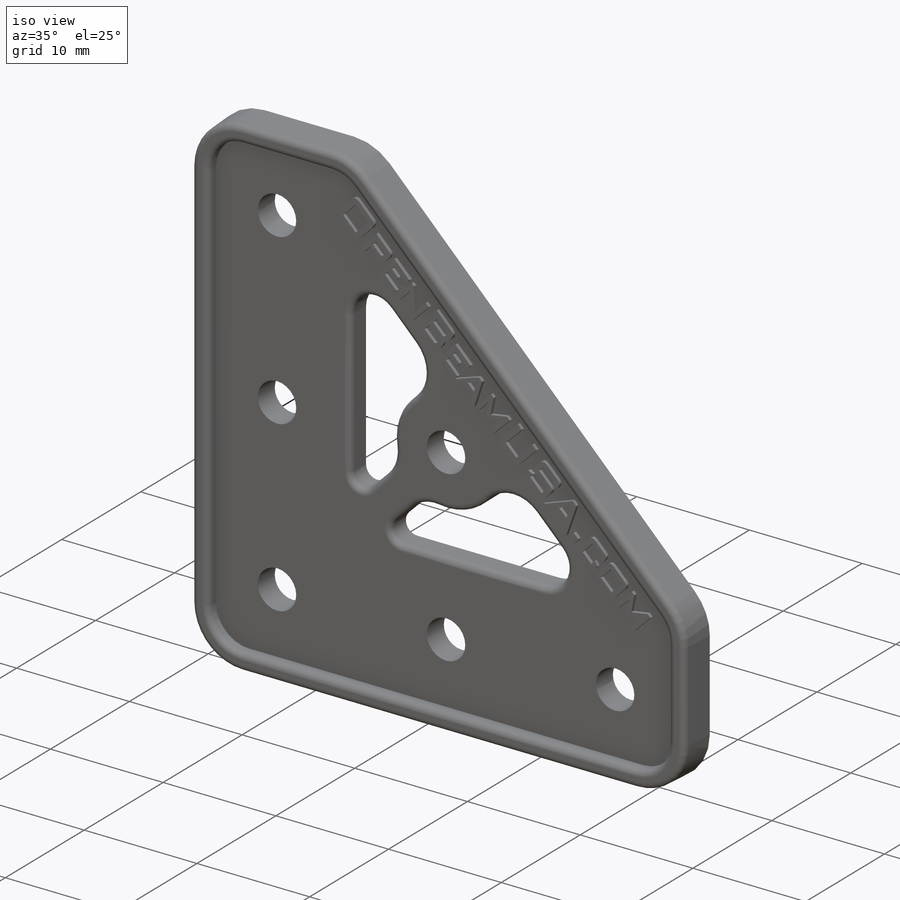
[diagram: iso view]
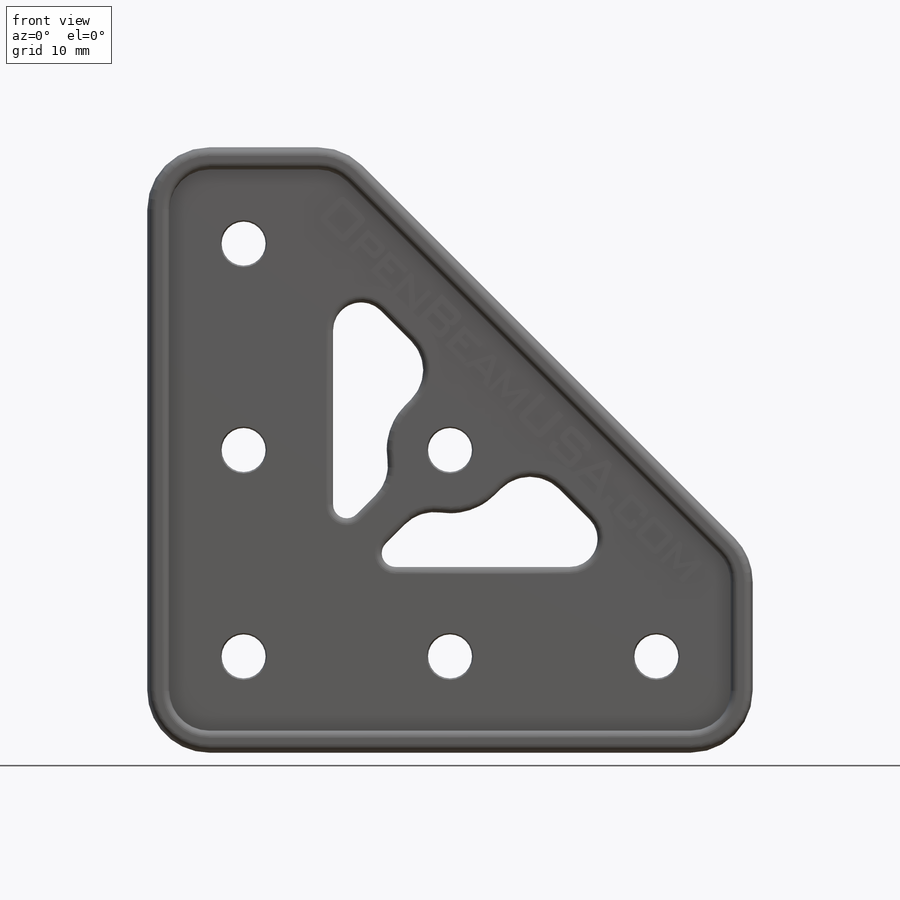
[diagram: front view]
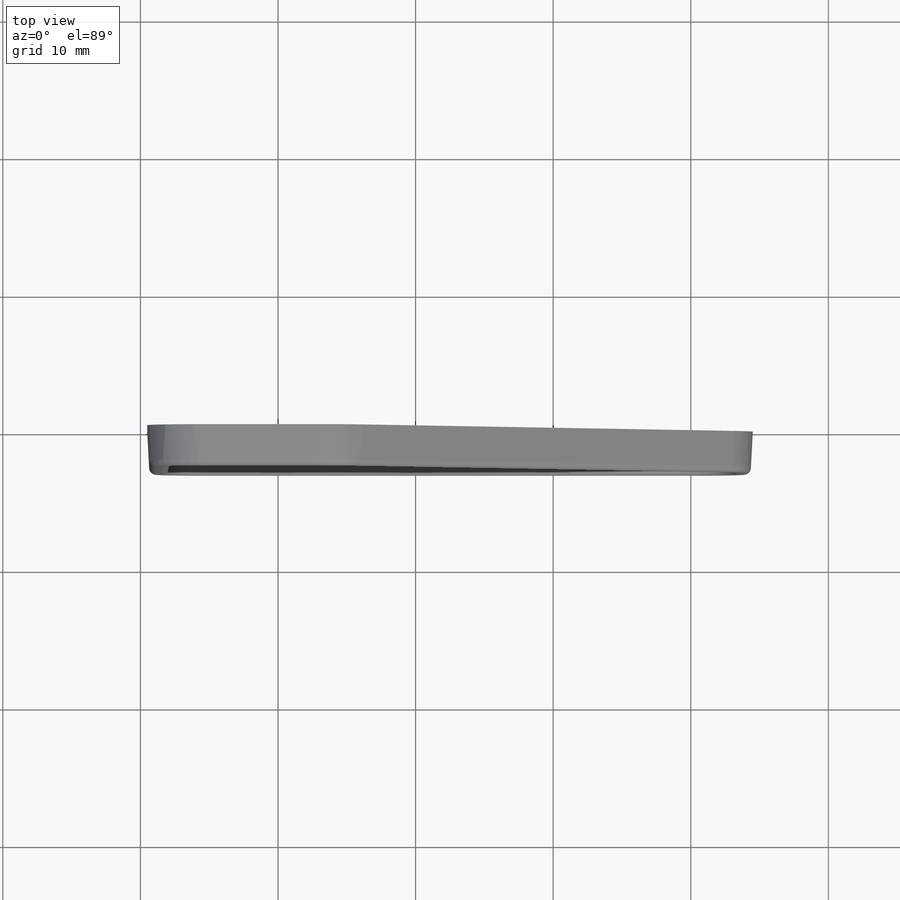
[diagram: top view]
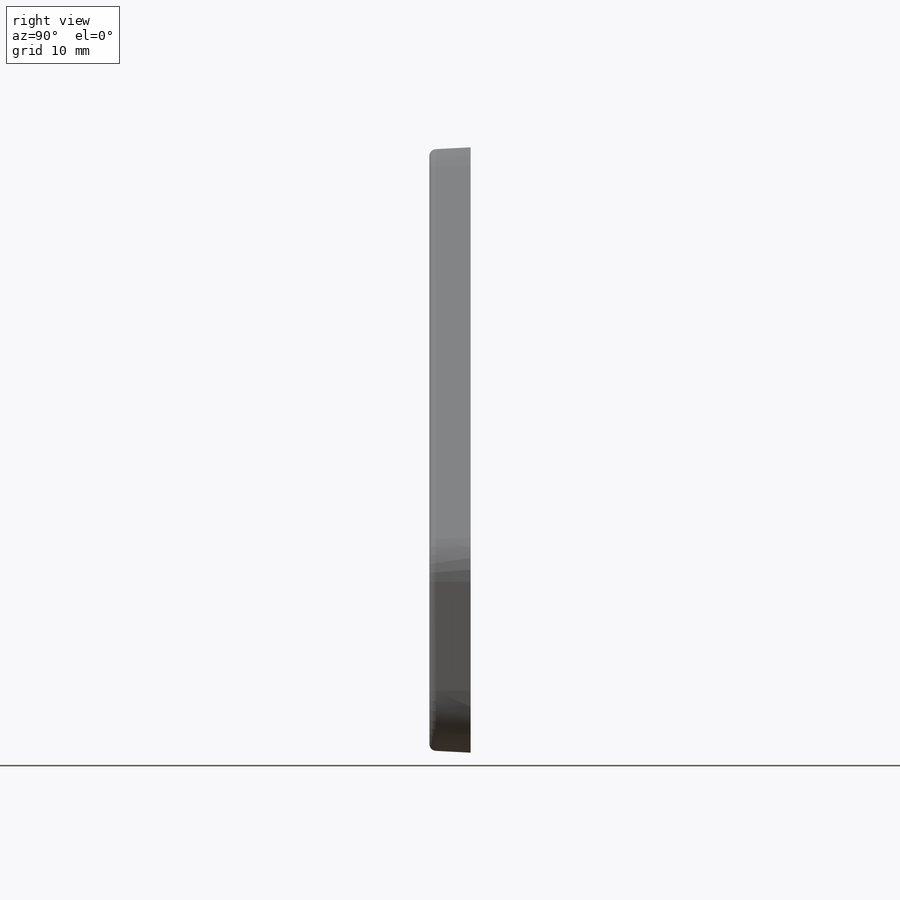
[diagram: right view]
SOLIDWORKS PART (.sldprt)
format: sldprt  version: not decoded by parser v0  size: 1,107,456 bytes
history: native  units: mm
features: sketch x9, cut_extrude x4, extrude x3, fillet x2, material x1 (+13 scaffold rows collapsed)
feature tree (32):
  scaffold x13  (default folders/planes/origin — collapsed)
  material  "Material <not specified>"
  sketch  "Sketch1"  dims[D4=5.0mm D1=45.0mm D2=45.0mm D3=15.0mm]
  extrude  "Boss-Extrude1"  Depth=2mm
  sketch  "Sketch2"  dims[c1.D7=3.2mm c1.D1=7.5mm c1.D2=~53.793511mm c1.D3=15.0mm c1.D4=15.0mm c1.D5=15.0mm c1.D6=15.0mm c2.D2=7.5mm]
  cut_extrude  "Cut-Extrude1"  Depth=2mm
  sketch  "Sketch3"  dims[c1.D2=1.5mm c1.D1=0.0mm c2.D2=2.0mm]
  extrude  "Boss-Extrude2"  Depth=1mm
  fillet  "Fillet1"  Radius=0.5mm
  sketch  "Sketch7"
  cut_extrude  "Cut-Extrude4"  [1 undecoded]
  sketch  "Sketch5"  dims[c1.D4=3.0mm c1.D6=3.0mm c2.D4=3.0mm c2.D8=1.0mm c2.D9=1.0mm c2.D1=14.0mm c2.D2=14.0mm c2.D3=6.5mm c2.D7=3.0mm c2.D10=~6.999314mm c2.D5=3.0mm]
  cut_extrude  "Cut-Extrude2"  [1 undecoded]
  fillet  "Fillet3"  Radius=0.5mm
  sketch  "Sketch8"  dims[D1=1.0mm D2=~27.072038mm]
  extrude  "Boss-Extrude3"  Depth=0.3mm
  sketch  "Sketch6"  dims[D3=0.5mm D1=30.0mm D2=3.0mm D4=1.0mm]
  cut_extrude  "Cut-Extrude3"  Depth=0.2mm
  sketch  "Sketch10"  dims[D1=3.0deg]
  sketch  "Alignment_Sketch"
decode coverage: 14 of 18 modeling features carry decoded parameters
note: ~ marks probable driven/reference dimensions
note: 2 parameter values undecoded
note: suppression state not decoded; provenance and decode notes live in map.json
